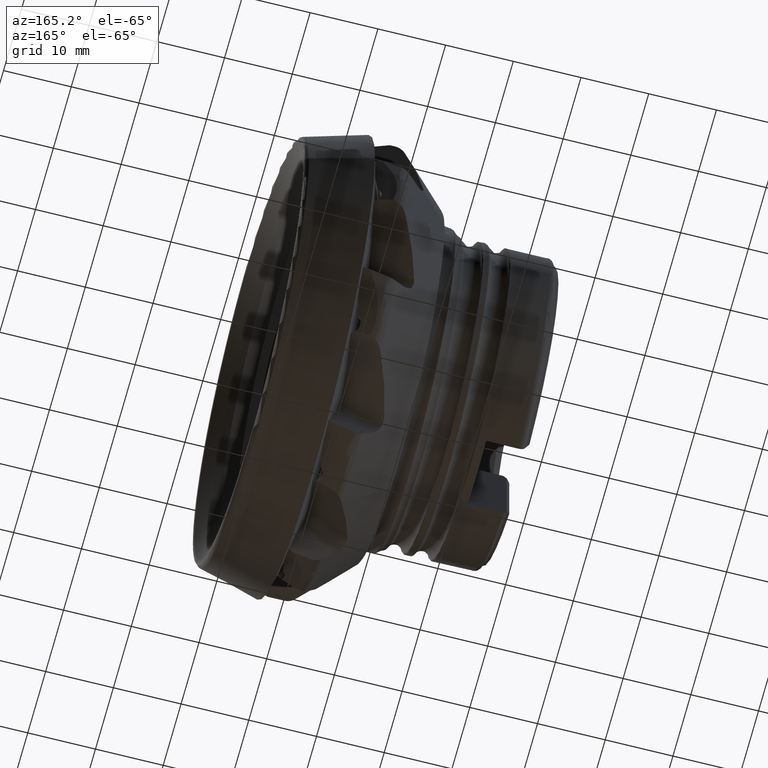
[diagram: clean part render]
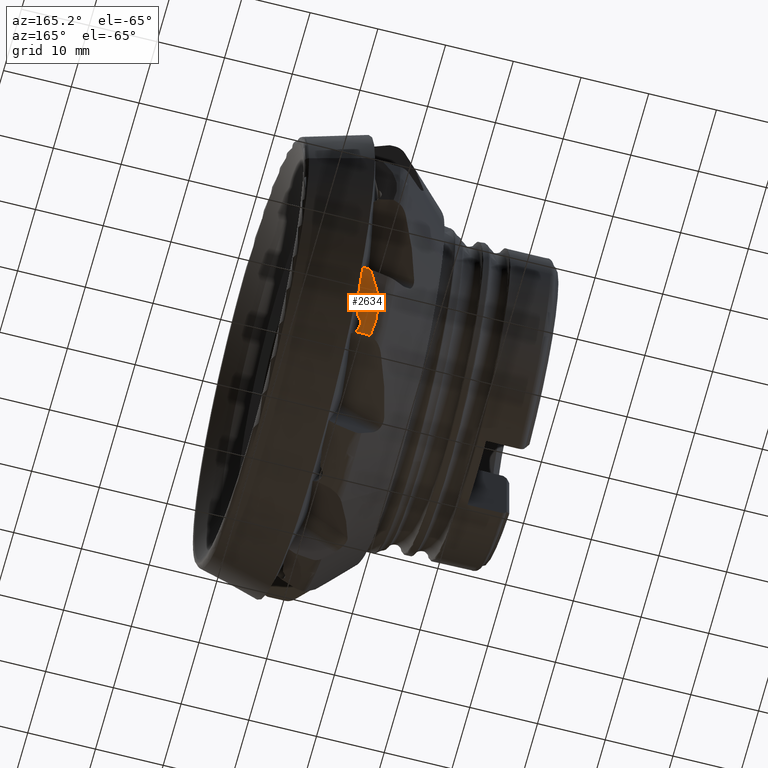
[diagram: same view with one face highlighted and labeled with its STEP entity id]
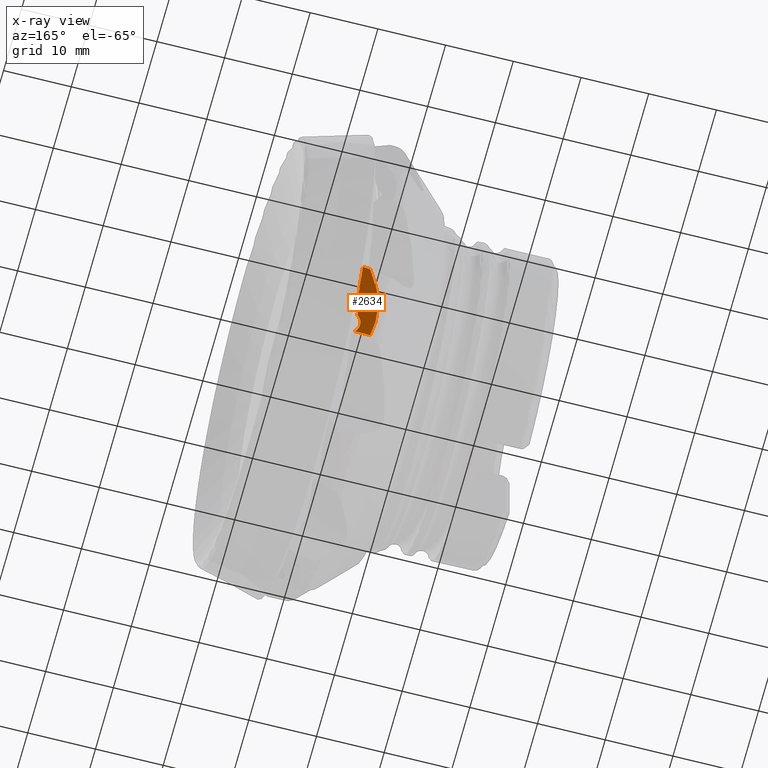
[diagram: x-ray of the same camera — body ghosted, the highlighted face saturated]
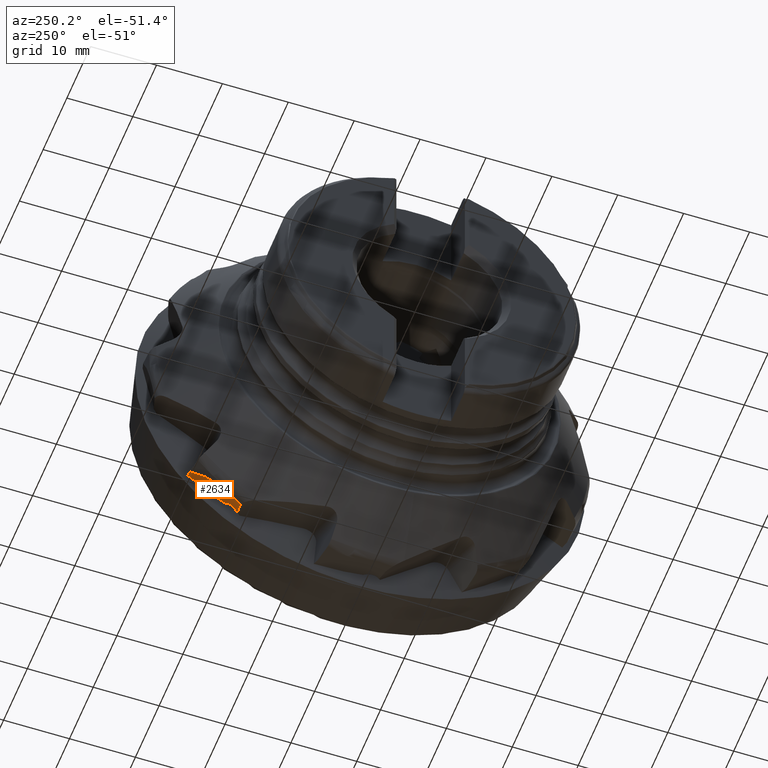
[diagram: same view with one face highlighted and labeled with its STEP entity id]
A machine part, auxiliary view. The second image highlights one B-rep face of the part: STEP entity #2634.
The next image is the same camera in x-ray: the body ghosted, the highlighted face saturated — about 0% of this face is hidden behind the body in this view.
A second angle (auxiliary view) of the same face is appended — the face is thin or edge-on in the first view.
In plain terms, the highlighted planar face has unit normal (0.3097, 0.6112, -0.7284).
Its self-contained STEP definition (entity closure, byte-faithful):
#38 = ORIENTED_EDGE ( 'NONE', *, *, #1998, .F. ) ;
#257 = CARTESIAN_POINT ( 'NONE',  ( -10.01236777215734400, 20.80110313779208300, -25.02964136462734100 ) ) ;
#285 = VERTEX_POINT ( 'NONE', #6607 ) ;
#416 = DIRECTION ( 'NONE',  ( -0.9508405499861232200, 0.1990590337255993300, -0.2372293185808143100 ) ) ;
#538 = CIRCLE ( 'NONE', #3230, 1.500000000000000400 ) ;
#830 = EDGE_CURVE ( 'NONE', #4480, #4470, #3829, .T. ) ;
#897 = CARTESIAN_POINT ( 'NONE',  ( -9.544401865970630900, 22.83868610014597400, -23.12094571413058100 ) ) ;
#1057 = EDGE_CURVE ( 'NONE', #4213, #4470, #6423, .T. ) ;
#1254 = CARTESIAN_POINT ( 'NONE',  ( -9.449571216011769100, 25.10188270092567100, -21.18158005086829500 ) ) ;
#1383 = DIRECTION ( 'NONE',  ( 0.9364297058866339900, -0.06317789884270783000, 0.3451202095370435300 ) ) ;
#1817 = DIRECTION ( 'NONE',  ( 0.9448574814276578000, -0.1120053776341786400, 0.3077322459073931200 ) ) ;
#1998 = EDGE_CURVE ( 'NONE', #285, #3966, #2362, .T. ) ;
#2051 = CARTESIAN_POINT ( 'NONE',  ( -10.42259682170848700, 26.29582534619799000, -20.59343510350449300 ) ) ;
#2097 = CARTESIAN_POINT ( 'NONE',  ( -12.28113579932681700, 19.25837752020281700, -27.28873202054918700 ) ) ;
#2122 = CARTESIAN_POINT ( 'NONE',  ( -10.01236777215734400, 20.80110313779208700, -25.02964136462734100 ) ) ;
#2362 = LINE ( 'NONE', #4490, #6307 ) ;
#2418 = CARTESIAN_POINT ( 'NONE',  ( -9.186580393742007200, 19.69134826927186700, -25.60974423261335200 ) ) ;
#2437 = FACE_OUTER_BOUND ( 'NONE', #4651, .T. ) ;
#2473 = VERTEX_POINT ( 'NONE', #257 ) ;
#2634 = ADVANCED_FACE ( 'NONE', ( #2437 ), #4697, .T. ) ;
#2954 = DIRECTION ( 'NONE',  ( 0.0000000000000000000, 0.7660444431189769000, 0.6427876096865405800 ) ) ;
#2980 = VECTOR ( 'NONE', #3200, 1000.000000000000100 ) ;
#3100 = CARTESIAN_POINT ( 'NONE',  ( 8.622754470576172300, 17.01793327112753900, -20.28118311439472200 ) ) ;
#3200 = DIRECTION ( 'NONE',  ( 0.1653078432748337800, 0.7197713349354064600, 0.6742421985882565100 ) ) ;
#3230 = AXIS2_PLACEMENT_3D ( 'NONE', #2418, #6166, #2954 ) ;
#3434 = EDGE_CURVE ( 'NONE', #4480, #285, #5337, .T. ) ;
#3459 = EDGE_CURVE ( 'NONE', #2473, #4213, #4416, .T. ) ;
#3637 = DIRECTION ( 'NONE',  ( 0.3096808817187247700, 0.6111885243186157000, -0.7283861196090616300 ) ) ;
#3677 = ORIENTED_EDGE ( 'NONE', *, *, #3459, .F. ) ;
#3829 = LINE ( 'NONE', #4600, #4002 ) ;
#3931 = CARTESIAN_POINT ( 'NONE',  ( -9.544401865970630900, 22.83868610014597400, -23.12094571413058100 ) ) ;
#3966 = VERTEX_POINT ( 'NONE', #4357 ) ;
#4002 = VECTOR ( 'NONE', #1383, 1000.000000000000000 ) ;
#4161 = EDGE_CURVE ( 'NONE', #3966, #2473, #538, .T. ) ;
#4213 = VERTEX_POINT ( 'NONE', #897 ) ;
#4351 = CARTESIAN_POINT ( 'NONE',  ( -9.361282425788038700, 26.22422187919532300, -20.20228876929252600 ) ) ;
#4357 = CARTESIAN_POINT ( 'NONE',  ( -10.09967281356171900, 18.99978234546131300, -26.57824761716698700 ) ) ;
#4416 = LINE ( 'NONE', #2122, #2980 ) ;
#4469 = CARTESIAN_POINT ( 'NONE',  ( -9.511090968782847100, 23.97347949590093600, -22.15457852230692000 ) ) ;
#4470 = VERTEX_POINT ( 'NONE', #4351 ) ;
#4480 = VERTEX_POINT ( 'NONE', #2051 ) ;
#4490 = CARTESIAN_POINT ( 'NONE',  ( 8.655571547844012100, 16.77649653928189000, -20.46982006769506400 ) ) ;
#4600 = CARTESIAN_POINT ( 'NONE',  ( 6.928092401335533200, 25.12523017851602700, -14.19885635122172100 ) ) ;
#4651 = EDGE_LOOP ( 'NONE', ( #6473, #3677, #5908, #38, #5336, #6650 ) ) ;
#4697 = PLANE ( 'NONE',  #5662 ) ;
#5007 = CARTESIAN_POINT ( 'NONE',  ( -9.361282425788038700, 26.22422187919532300, -20.20228876929252600 ) ) ;
#5302 = CARTESIAN_POINT ( 'NONE',  ( -13.11692570889151500, 21.92266482007844500, -25.40847424218671700 ) ) ;
#5336 = ORIENTED_EDGE ( 'NONE', *, *, #3434, .F. ) ;
#5337 =( BOUNDED_CURVE ( )  B_SPLINE_CURVE ( 3, ( #6351, #6373, #5302, #2097 ),
 .UNSPECIFIED., .F., .F. ) 
 B_SPLINE_CURVE_WITH_KNOTS ( ( 4, 4 ),
 ( 2.933306487549813400, 3.225165525441503700 ),
 .UNSPECIFIED. ) 
 CURVE ( )  GEOMETRIC_REPRESENTATION_ITEM ( )  RATIONAL_B_SPLINE_CURVE ( ( 1.000000000000000000, 0.9929141133143739600, 0.9929141133143739600, 1.000000000000000000 ) ) 
 REPRESENTATION_ITEM ( '' )  );
#5662 = AXIS2_PLACEMENT_3D ( 'NONE', #3100, #3637, #416 ) ;
#5908 = ORIENTED_EDGE ( 'NONE', *, *, #4161, .F. ) ;
#6166 = DIRECTION ( 'NONE',  ( 0.3096808817187246500, 0.6111885243186157000, -0.7283861196090617400 ) ) ;
#6307 = VECTOR ( 'NONE', #1817, 1000.000000000000100 ) ;
#6351 = CARTESIAN_POINT ( 'NONE',  ( -10.42259682170848700, 26.29582534619799000, -20.59343510350449300 ) ) ;
#6373 = CARTESIAN_POINT ( 'NONE',  ( -12.49299158988552000, 24.28522157150580800, -23.16078170857452500 ) ) ;
#6423 = B_SPLINE_CURVE_WITH_KNOTS ( 'NONE', 3,
 ( #3931, #4469, #1254, #5007 ),
 .UNSPECIFIED., .F., .F.,
 ( 4, 4 ),
 ( 0.005012053283150572300, 0.009484690763373077000 ),
 .UNSPECIFIED. ) ;
#6473 = ORIENTED_EDGE ( 'NONE', *, *, #1057, .F. ) ;
#6607 = CARTESIAN_POINT ( 'NONE',  ( -12.28113579932681700, 19.25837752020281700, -27.28873202054918700 ) ) ;
#6650 = ORIENTED_EDGE ( 'NONE', *, *, #830, .T. ) ;